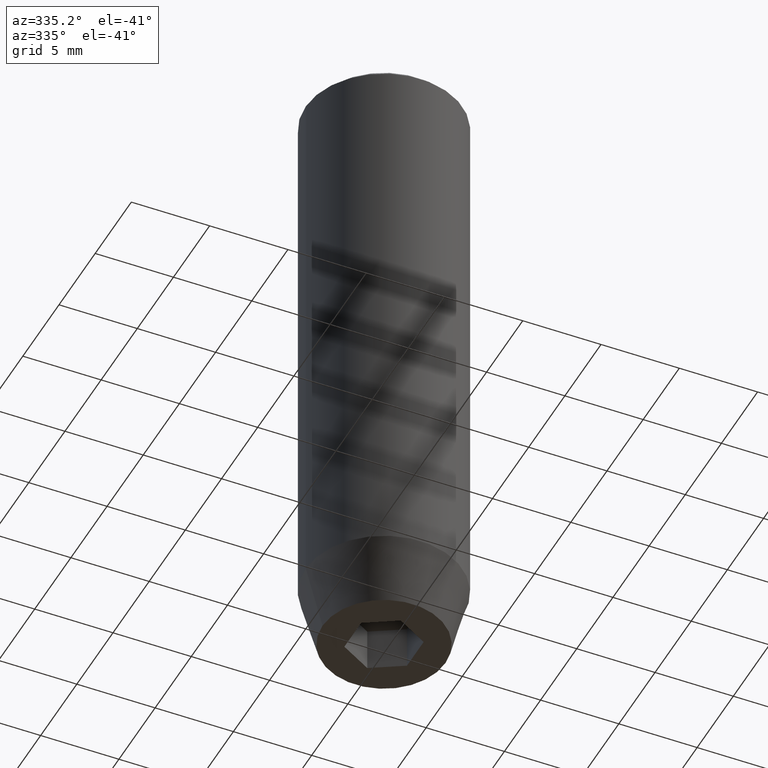
[diagram: clean part render]
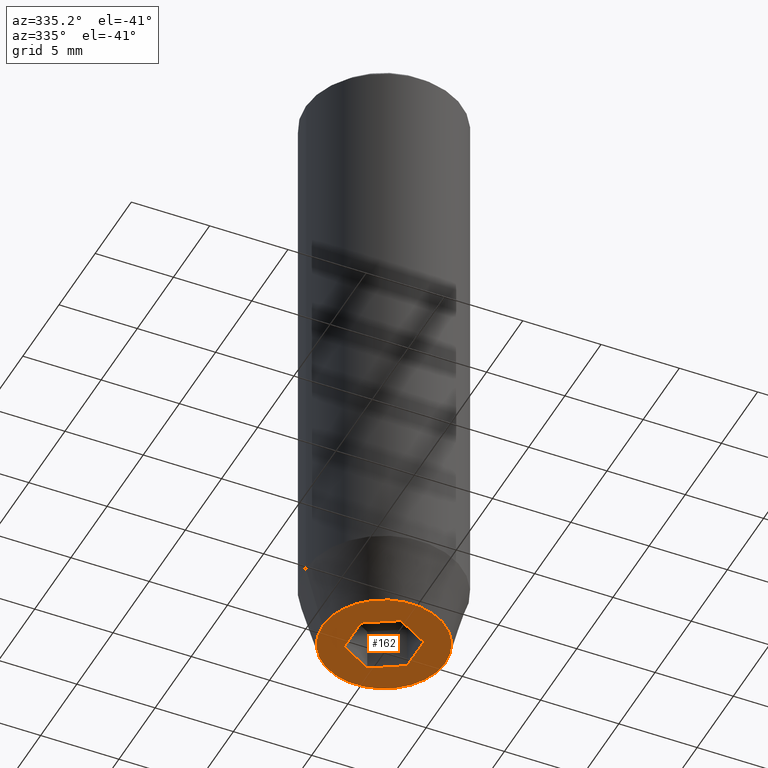
[diagram: same view with one face highlighted and labeled with its STEP entity id]
A machine part, auxiliary view. The second image highlights one B-rep face of the part: STEP entity #162.
In plain terms, the highlighted planar face has unit normal (0, 0, -1).
Its self-contained STEP definition (entity closure, byte-faithful):
#3 = CARTESIAN_POINT ( 'NONE',  ( -3.928203230275508773, 5.466947754046981113E-16, -40.00000000000000000 ) ) ;
#6 = DIRECTION ( 'NONE',  ( -0.8660254037844388186, -0.4999999999999996114, 0.000000000000000000 ) ) ;
#10 = DIRECTION ( 'NONE',  ( 0.000000000000000000, -1.000000000000000000, 0.000000000000000000 ) ) ;
#16 = CARTESIAN_POINT ( 'NONE',  ( 2.000000000000000888, 1.154700538379251462, -40.00000000000000000 ) ) ;
#21 = CARTESIAN_POINT ( 'NONE',  ( 0.000000000000000000, 3.928203230275508773, -40.00000000000000000 ) ) ;
#32 = CIRCLE ( 'NONE', #481, 3.928203230275508773 ) ;
#34 = VECTOR ( 'NONE', #228, 1000.000000000000000 ) ;
#44 = VERTEX_POINT ( 'NONE', #54 ) ;
#48 = CARTESIAN_POINT ( 'NONE',  ( 0.000000000000000000, 0.000000000000000000, -40.00000000000000000 ) ) ;
#52 = VERTEX_POINT ( 'NONE', #3 ) ;
#54 = CARTESIAN_POINT ( 'NONE',  ( 2.168404344971008868E-16, -2.309401076758503812, -40.00000000000000000 ) ) ;
#62 = DIRECTION ( 'NONE',  ( 0.8660254037844385966, -0.5000000000000001110, 0.000000000000000000 ) ) ;
#72 = EDGE_CURVE ( 'NONE', #52, #86, #32, .T. ) ;
#73 = LINE ( 'NONE', #463, #92 ) ;
#86 = VERTEX_POINT ( 'NONE', #89 ) ;
#87 = EDGE_LOOP ( 'NONE', ( #406, #211, #353, #529, #170, #276 ) ) ;
#89 = CARTESIAN_POINT ( 'NONE',  ( 3.928203230275508773, 0.000000000000000000, -40.00000000000000000 ) ) ;
#92 = VECTOR ( 'NONE', #417, 1000.000000000000000 ) ;
#95 = DIRECTION ( 'NONE',  ( -0.000000000000000000, -0.000000000000000000, 1.000000000000000000 ) ) ;
#97 = DIRECTION ( 'NONE',  ( 1.000000000000000000, 0.000000000000000000, 0.000000000000000000 ) ) ;
#101 = EDGE_CURVE ( 'NONE', #265, #585, #371, .T. ) ;
#103 = DIRECTION ( 'NONE',  ( 1.000000000000000000, 0.000000000000000000, 0.000000000000000000 ) ) ;
#106 = VECTOR ( 'NONE', #10, 1000.000000000000000 ) ;
#118 = DIRECTION ( 'NONE',  ( 0.000000000000000000, 0.000000000000000000, -1.000000000000000000 ) ) ;
#119 = VECTOR ( 'NONE', #62, 1000.000000000000000 ) ;
#146 = DIRECTION ( 'NONE',  ( -0.8660254037844387076, 0.5000000000000001110, 0.000000000000000000 ) ) ;
#159 = VECTOR ( 'NONE', #6, 1000.000000000000114 ) ;
#162 = ADVANCED_FACE ( 'NONE', ( #388, #251 ), #258, .T. ) ;
#170 = ORIENTED_EDGE ( 'NONE', *, *, #474, .F. ) ;
#182 = CARTESIAN_POINT ( 'NONE',  ( 2.000000000000000888, -1.154700538379252572, -40.00000000000000000 ) ) ;
#189 = CARTESIAN_POINT ( 'NONE',  ( -1.000000000000000222, -1.732050807568877637, -40.00000000000000000 ) ) ;
#207 = CIRCLE ( 'NONE', #253, 3.928203230275508773 ) ;
#208 = CARTESIAN_POINT ( 'NONE',  ( -1.999999999999997780, 1.154700538379253238, -40.00000000000000000 ) ) ;
#211 = ORIENTED_EDGE ( 'NONE', *, *, #523, .F. ) ;
#227 = DIRECTION ( 'NONE',  ( -0.000000000000000000, -0.000000000000000000, 1.000000000000000000 ) ) ;
#228 = DIRECTION ( 'NONE',  ( 5.633679745264339711E-16, 1.000000000000000000, 0.000000000000000000 ) ) ;
#232 = AXIS2_PLACEMENT_3D ( 'NONE', #21, #118, #339 ) ;
#235 = LINE ( 'NONE', #189, #495 ) ;
#237 = CARTESIAN_POINT ( 'NONE',  ( 0.9999999999999997780, -1.732050807568878747, -40.00000000000000000 ) ) ;
#241 = EDGE_CURVE ( 'NONE', #86, #52, #207, .T. ) ;
#244 = CARTESIAN_POINT ( 'NONE',  ( -1.999999999999998668, -1.154700538379252572, -40.00000000000000000 ) ) ;
#251 = FACE_OUTER_BOUND ( 'NONE', #444, .T. ) ;
#253 = AXIS2_PLACEMENT_3D ( 'NONE', #48, #95, #103 ) ;
#258 = PLANE ( 'NONE',  #232 ) ;
#265 = VERTEX_POINT ( 'NONE', #445 ) ;
#270 = ORIENTED_EDGE ( 'NONE', *, *, #72, .F. ) ;
#276 = ORIENTED_EDGE ( 'NONE', *, *, #101, .F. ) ;
#309 = CARTESIAN_POINT ( 'NONE',  ( 0.000000000000000000, 0.000000000000000000, -40.00000000000000000 ) ) ;
#312 = ORIENTED_EDGE ( 'NONE', *, *, #241, .F. ) ;
#332 = EDGE_CURVE ( 'NONE', #456, #265, #73, .T. ) ;
#339 = DIRECTION ( 'NONE',  ( -1.000000000000000000, 0.000000000000000000, -0.000000000000000000 ) ) ;
#349 = CARTESIAN_POINT ( 'NONE',  ( -1.999999999999998224, 1.126735949052866956E-15, -40.00000000000000000 ) ) ;
#353 = ORIENTED_EDGE ( 'NONE', *, *, #433, .F. ) ;
#371 = LINE ( 'NONE', #412, #119 ) ;
#388 = FACE_BOUND ( 'NONE', #87, .T. ) ;
#393 = VERTEX_POINT ( 'NONE', #244 ) ;
#406 = ORIENTED_EDGE ( 'NONE', *, *, #332, .F. ) ;
#409 = LINE ( 'NONE', #237, #159 ) ;
#412 = CARTESIAN_POINT ( 'NONE',  ( 1.000000000000000444, 1.732050807568877637, -40.00000000000000000 ) ) ;
#417 = DIRECTION ( 'NONE',  ( 0.8660254037844385966, 0.5000000000000001110, 0.000000000000000000 ) ) ;
#433 = EDGE_CURVE ( 'NONE', #44, #393, #235, .T. ) ;
#444 = EDGE_LOOP ( 'NONE', ( #312, #270 ) ) ;
#445 = CARTESIAN_POINT ( 'NONE',  ( 0.000000000000000000, 2.309401076758503812, -40.00000000000000000 ) ) ;
#451 = LINE ( 'NONE', #349, #34 ) ;
#455 = LINE ( 'NONE', #457, #106 ) ;
#456 = VERTEX_POINT ( 'NONE', #208 ) ;
#457 = CARTESIAN_POINT ( 'NONE',  ( 2.000000000000000888, 0.000000000000000000, -40.00000000000000000 ) ) ;
#463 = CARTESIAN_POINT ( 'NONE',  ( -1.000000000000000444, 1.732050807568877637, -40.00000000000000000 ) ) ;
#474 = EDGE_CURVE ( 'NONE', #585, #560, #455, .T. ) ;
#481 = AXIS2_PLACEMENT_3D ( 'NONE', #309, #227, #97 ) ;
#495 = VECTOR ( 'NONE', #146, 999.9999999999998863 ) ;
#523 = EDGE_CURVE ( 'NONE', #393, #456, #451, .T. ) ;
#529 = ORIENTED_EDGE ( 'NONE', *, *, #559, .F. ) ;
#559 = EDGE_CURVE ( 'NONE', #560, #44, #409, .T. ) ;
#560 = VERTEX_POINT ( 'NONE', #182 ) ;
#585 = VERTEX_POINT ( 'NONE', #16 ) ;